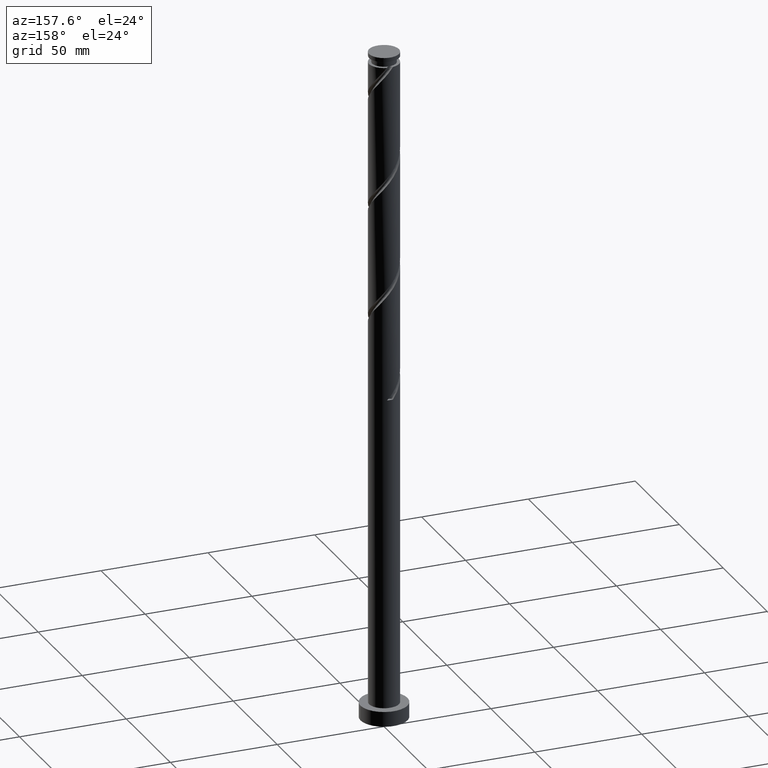
[diagram: clean part render]
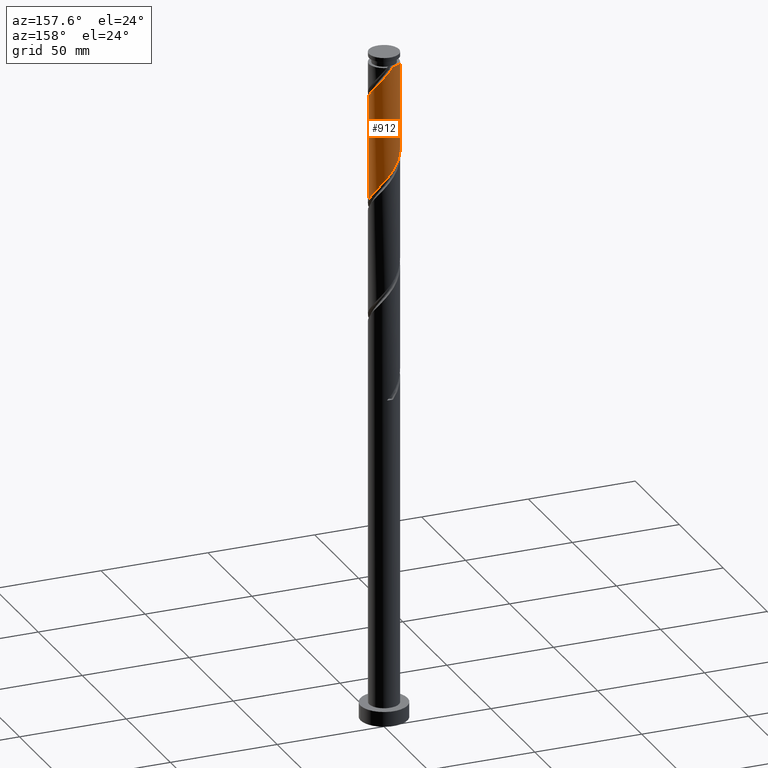
[diagram: same view with one face highlighted and labeled with its STEP entity id]
A machine part, auxiliary view. The second image highlights one B-rep face of the part: STEP entity #912.
In plain terms, the highlighted cylindrical surface (edge-blend (fillet) strip) has radius 7 mm, axis along (-0, -0, -1).
Its self-contained STEP definition (entity closure, byte-faithful):
#1 = CARTESIAN_POINT ( 'NONE',  ( -0.9569183889397352427, 6.978995026134490409, 260.5706206460753265 ) ) ;
#10 = CARTESIAN_POINT ( 'NONE',  ( 6.978995026134489521, 0.9569183889397335774, 247.4456206460753549 ) ) ;
#60 = VECTOR ( 'NONE', #1266, 1000.000000000000000 ) ;
#146 = ORIENTED_EDGE ( 'NONE', *, *, #432, .T. ) ;
#151 = DIRECTION ( 'NONE',  ( -1.000000000000000000, 0.000000000000000000, 0.000000000000000000 ) ) ;
#159 = CARTESIAN_POINT ( 'NONE',  ( -5.099481148643350004, 4.859769170704720587, 266.1956206460753833 ) ) ;
#169 = CARTESIAN_POINT ( 'NONE',  ( 6.997973224858977659, 0.1684361723526121291, 246.5081206460753265 ) ) ;
#228 = CARTESIAN_POINT ( 'NONE',  ( 7.000000000000009770, -1.358245390458886674E-15, 295.4586035681693943 ) ) ;
#234 = CARTESIAN_POINT ( 'NONE',  ( 4.494853641711740622, 5.366217544937105899, 302.7581206460753833 ) ) ;
#242 = CARTESIAN_POINT ( 'NONE',  ( 5.576254016389058599, 4.231476237048368283, 300.8831206460752696 ) ) ;
#255 = VERTEX_POINT ( 'NONE', #1705 ) ;
#264 = CARTESIAN_POINT ( 'NONE',  ( 0.6200460442345090417, 7.016951423583470238, 258.6956206460753265 ) ) ;
#276 = ORIENTED_EDGE ( 'NONE', *, *, #1215, .F. ) ;
#277 = EDGE_CURVE ( 'NONE', #911, #255, #1073, .T. ) ;
#286 =( BOUNDED_CURVE ( )  B_SPLINE_CURVE ( 2, ( #228, #1670, #1117, #549, #1746, #522, #242, #840, #234, #1112, #1731, #1704, #1123, #1419, #539, #376, #1713 ),
 .UNSPECIFIED., .F., .T. ) 
 B_SPLINE_CURVE_WITH_KNOTS ( ( 3, 2, 2, 2, 2, 2, 2, 2, 3 ),
 ( 0.6795303401299219725, 0.6875000000000000000, 0.6964285714285713969, 0.7053571428571426827, 0.7142857142857141906, 0.7232142857142855874, 0.7321428571428569843, 0.7410714285714283811, 0.7499999999999997780 ),
 .UNSPECIFIED. ) 
 CURVE ( )  GEOMETRIC_REPRESENTATION_ITEM ( )  RATIONAL_B_SPLINE_CURVE ( ( 0.9079949616361994158, 0.9039886423360623535, 0.9090909090909291557, 0.9033747362666041392, 0.9090909090909291557, 0.9033747362666041392, 0.9090909090909291557, 0.9033747362666041392, 0.9090909090909291557, 0.9033747362666041392, 0.9090909090909291557, 0.9033747362666041392, 0.9090909090909291557, 0.9033747362666041392, 0.9090909090909291557, 0.9033747362666043612, 0.9090909090909289336 ) ) 
 REPRESENTATION_ITEM ( '' )  );
#295 = CARTESIAN_POINT ( 'NONE',  ( -3.188062536564720162, 6.231874297749633307, 263.3831206460753265 ) ) ;
#303 = CARTESIAN_POINT ( 'NONE',  ( -2.485898938349330400, 6.591082676329786949, 262.4456206460753833 ) ) ;
#311 = CARTESIAN_POINT ( 'NONE',  ( 7.000000000000000000, 8.572527594031473190E-16, 315.0000000000000000 ) ) ;
#355 = CARTESIAN_POINT ( 'NONE',  ( 1.392982411949271970, 6.859999999999998543, 257.7581206460753833 ) ) ;
#376 = CARTESIAN_POINT ( 'NONE',  ( -0.6200460442344873924, 7.016951423583478231, 309.3206206460752696 ) ) ;
#392 = CARTESIAN_POINT ( 'NONE',  ( -6.999999999999998224, 1.373171163980421709E-15, 272.5576377239813723 ) ) ;
#405 = AXIS2_PLACEMENT_3D ( 'NONE', #694, #998, #1745 ) ;
#432 = EDGE_CURVE ( 'NONE', #1125, #1503, #1492, .T. ) ;
#442 = CARTESIAN_POINT ( 'NONE',  ( -5.576254016389048829, 4.231476237048363842, 267.1331206460753833 ) ) ;
#462 = CARTESIAN_POINT ( 'NONE',  ( 3.603183303392008430, 6.053026884134745877, 254.9456206460753549 ) ) ;
#522 = CARTESIAN_POINT ( 'NONE',  ( 6.053026884134759200, 3.603183303392009762, 299.9456206460753265 ) ) ;
#539 = CARTESIAN_POINT ( 'NONE',  ( 0.1684361723526161259, 6.997973224858987429, 308.3831206460753265 ) ) ;
#549 = CARTESIAN_POINT ( 'NONE',  ( 6.703048576416536619, 2.165918779664033345, 298.0706206460753265 ) ) ;
#581 = CARTESIAN_POINT ( 'NONE',  ( -6.703048576416525961, 2.165918779664032012, 269.9456206460754402 ) ) ;
#597 = CARTESIAN_POINT ( 'NONE',  ( -0.1684361723526131283, 6.997973224858978547, 259.6331206460753265 ) ) ;
#600 = CARTESIAN_POINT ( 'NONE',  ( -1.392982411949267085, 6.859999999999982556, 310.2581206460753833 ) ) ;
#694 = CARTESIAN_POINT ( 'NONE',  ( 0.000000000000000000, 0.000000000000000000, 315.0000000000000000 ) ) ;
#734 = LINE ( 'NONE', #996, #60 ) ;
#779 = CARTESIAN_POINT ( 'NONE',  ( 4.231476237048364730, 5.576254016389047941, 254.0081206460754117 ) ) ;
#840 = CARTESIAN_POINT ( 'NONE',  ( 5.099481148643358885, 4.859769170704724139, 301.8206206460752696 ) ) ;
#841 = CARTESIAN_POINT ( 'NONE',  ( -6.999999999999993783, 0.7035264706814698954, 271.7193666450177716 ) ) ;
#888 = CARTESIAN_POINT ( 'NONE',  ( -1.721408663644532266, 6.785038851232138235, 261.5081206460753833 ) ) ;
#911 = VERTEX_POINT ( 'NONE', #1223 ) ;
#912 = ADVANCED_FACE ( 'NONE', ( #1812 ), #1575, .T. ) ;
#931 = CARTESIAN_POINT ( 'NONE',  ( 6.999999999999997335, 0.08423028016473017854, 246.4080004122064622 ) ) ;
#940 = CARTESIAN_POINT ( 'NONE',  ( 2.165918779664034233, 6.703048576416525961, 256.8206206460753265 ) ) ;
#950 = CARTESIAN_POINT ( 'NONE',  ( 6.231874297749634195, 3.188062536564719274, 250.2581206460753833 ) ) ;
#996 = CARTESIAN_POINT ( 'NONE',  ( -7.000000000000000000, 0.000000000000000000, 315.0000000000000000 ) ) ;
#998 = DIRECTION ( 'NONE',  ( -0.000000000000000000, -0.000000000000000000, -1.000000000000000000 ) ) ;
#1007 = CARTESIAN_POINT ( 'NONE',  ( -4.494853641711730852, 5.366217544937102346, 265.2581206460754402 ) ) ;
#1022 = CARTESIAN_POINT ( 'NONE',  ( 0.000000000000000000, 0.000000000000000000, 310.2581206460753833 ) ) ;
#1031 = DIRECTION ( 'NONE',  ( -0.000000000000000000, -0.000000000000000000, -1.000000000000000000 ) ) ;
#1068 = EDGE_LOOP ( 'NONE', ( #276, #1461, #1892, #1133, #146 ) ) ;
#1073 =( BOUNDED_CURVE ( )  B_SPLINE_CURVE ( 2, ( #392, #841, #1630, #581, #1774, #1155, #442, #159, #1007, #1342, #295, #303, #888, #1, #597, #264, #355, #940, #1645, #462, #779, #1654, #1817, #1389, #950, #1235, #1542, #10, #169, #931, #1826 ),
 .UNSPECIFIED., .F., .T. ) 
 B_SPLINE_CURVE_WITH_KNOTS ( ( 3, 2, 2, 2, 2, 2, 2, 2, 2, 2, 2, 2, 2, 2, 2, 3 ),
 ( 0.4295303401299222501, 0.4375000000000000000, 0.4464285714285714524, 0.4553571428571428492, 0.4642857142857143016, 0.4732142857142856984, 0.4821428571428571508, 0.4910714285714285476, 0.5000000000000000000, 0.5089285714285713969, 0.5178571428571429047, 0.5267857142857143016, 0.5357142857142856984, 0.5446428571428570953, 0.5535714285714286031, 0.5545303401299220836 ),
 .UNSPECIFIED. ) 
 CURVE ( )  GEOMETRIC_REPRESENTATION_ITEM ( )  RATIONAL_B_SPLINE_CURVE ( ( 0.9079949616361930875, 0.9039886423360565804, 0.9090909090909231605, 0.9033747362665981440, 0.9090909090909231605, 0.9033747362665981440, 0.9090909090909231605, 0.9033747362665981440, 0.9090909090909231605, 0.9033747362665981440, 0.9090909090909231605, 0.9033747362665981440, 0.9090909090909231605, 0.9033747362665981440, 0.9090909090909231605, 0.9033747362665981440, 0.9090909090909231605, 0.9033747362665981440, 0.9090909090909231605, 0.9033747362665981440, 0.9090909090909231605, 0.9033747362665981440, 0.9090909090909231605, 0.9033747362665981440, 0.9090909090909231605, 0.9033747362665981440, 0.9090909090909231605, 0.9033747362665981440, 0.9090909090909231605, 0.9084770030214649461, 0.9079949616361933096 ) ) 
 REPRESENTATION_ITEM ( '' )  );
#1112 = CARTESIAN_POINT ( 'NONE',  ( 3.890226134780119249, 5.872665919169489435, 303.6956206460753265 ) ) ;
#1117 = CARTESIAN_POINT ( 'NONE',  ( 6.860000000000009202, 1.392982411949269972, 297.1331206460752128 ) ) ;
#1123 = CARTESIAN_POINT ( 'NONE',  ( 1.721408663644536707, 6.785038851232146229, 306.5081206460753265 ) ) ;
#1125 = VERTEX_POINT ( 'NONE', #1803 ) ;
#1133 = ORIENTED_EDGE ( 'NONE', *, *, #1465, .F. ) ;
#1155 = CARTESIAN_POINT ( 'NONE',  ( -6.053026884134746766, 3.603183303392007097, 268.0706206460753265 ) ) ;
#1215 = EDGE_CURVE ( 'NONE', #1365, #1503, #286, .T. ) ;
#1223 = CARTESIAN_POINT ( 'NONE',  ( -6.999999999999998224, 1.373171163980421906E-15, 272.5576377239813723 ) ) ;
#1235 = CARTESIAN_POINT ( 'NONE',  ( 6.591082676329786949, 2.485898938349327736, 249.3206206460753833 ) ) ;
#1266 = DIRECTION ( 'NONE',  ( -0.000000000000000000, -0.000000000000000000, -1.000000000000000000 ) ) ;
#1304 = AXIS2_PLACEMENT_3D ( 'NONE', #1022, #1474, #151 ) ;
#1342 = CARTESIAN_POINT ( 'NONE',  ( -3.890226134780113476, 5.872665919169481441, 264.3206206460753265 ) ) ;
#1365 = VERTEX_POINT ( 'NONE', #1763 ) ;
#1389 = CARTESIAN_POINT ( 'NONE',  ( 5.872665919169481441, 3.890226134780111256, 251.1956206460753265 ) ) ;
#1419 = CARTESIAN_POINT ( 'NONE',  ( 0.9569183889397397946, 6.978995026134499291, 307.4456206460753265 ) ) ;
#1461 = ORIENTED_EDGE ( 'NONE', *, *, #1656, .T. ) ;
#1465 = EDGE_CURVE ( 'NONE', #1125, #911, #734, .T. ) ;
#1474 = DIRECTION ( 'NONE',  ( -0.000000000000000000, -0.000000000000000000, -1.000000000000000000 ) ) ;
#1492 = CIRCLE ( 'NONE', #1304, 6.999999999999975131 ) ;
#1503 = VERTEX_POINT ( 'NONE', #600 ) ;
#1542 = CARTESIAN_POINT ( 'NONE',  ( 6.785038851232137347, 1.721408663644531156, 248.3831206460753549 ) ) ;
#1575 = CYLINDRICAL_SURFACE ( 'NONE', #405, 7.000000000000000000 ) ;
#1630 = CARTESIAN_POINT ( 'NONE',  ( -6.859999999999998543, 1.392982411949270860, 270.8831206460753833 ) ) ;
#1637 = LINE ( 'NONE', #311, #1672 ) ;
#1645 = CARTESIAN_POINT ( 'NONE',  ( 2.884551041528021109, 6.378037730275636363, 255.8831206460753265 ) ) ;
#1654 = CARTESIAN_POINT ( 'NONE',  ( 4.859769170704720587, 5.099481148643350004, 253.0706206460753833 ) ) ;
#1656 = EDGE_CURVE ( 'NONE', #1365, #255, #1637, .T. ) ;
#1670 = CARTESIAN_POINT ( 'NONE',  ( 7.000000000000011546, 0.7035264706814399194, 296.2968746471329382 ) ) ;
#1672 = VECTOR ( 'NONE', #1031, 1000.000000000000000 ) ;
#1704 = CARTESIAN_POINT ( 'NONE',  ( 2.485898938349336174, 6.591082676329794054, 305.5706206460754970 ) ) ;
#1705 = CARTESIAN_POINT ( 'NONE',  ( 6.999999999999998224, -3.074709345434422881E-15, 246.3076377239813723 ) ) ;
#1713 = CARTESIAN_POINT ( 'NONE',  ( -1.392982411949267085, 6.859999999999982556, 310.2581206460753833 ) ) ;
#1731 = CARTESIAN_POINT ( 'NONE',  ( 3.188062536564727267, 6.231874297749643077, 304.6331206460752696 ) ) ;
#1745 = DIRECTION ( 'NONE',  ( -1.000000000000000000, 0.000000000000000000, 0.000000000000000000 ) ) ;
#1746 = CARTESIAN_POINT ( 'NONE',  ( 6.378037730275647021, 2.884551041528021997, 299.0081206460754402 ) ) ;
#1763 = CARTESIAN_POINT ( 'NONE',  ( 7.000000000000008882, -1.358245390458886674E-15, 295.4586035681693943 ) ) ;
#1774 = CARTESIAN_POINT ( 'NONE',  ( -6.378037730275637252, 2.884551041528019777, 269.0081206460753265 ) ) ;
#1803 = CARTESIAN_POINT ( 'NONE',  ( -6.999999999999975131, 0.000000000000000000, 310.2581206460753833 ) ) ;
#1812 = FACE_OUTER_BOUND ( 'NONE', #1068, .T. ) ;
#1817 = CARTESIAN_POINT ( 'NONE',  ( 5.366217544937102346, 4.494853641711729964, 252.1331206460754117 ) ) ;
#1826 = CARTESIAN_POINT ( 'NONE',  ( 6.999999999999998224, -3.074709345434422881E-15, 246.3076377239813723 ) ) ;
#1892 = ORIENTED_EDGE ( 'NONE', *, *, #277, .F. ) ;